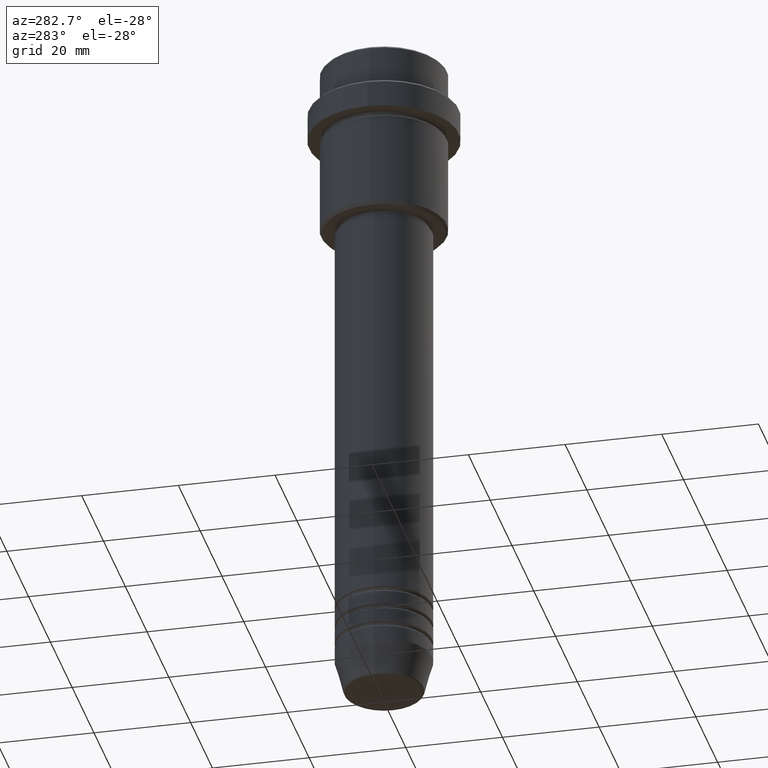
[diagram: clean part render]
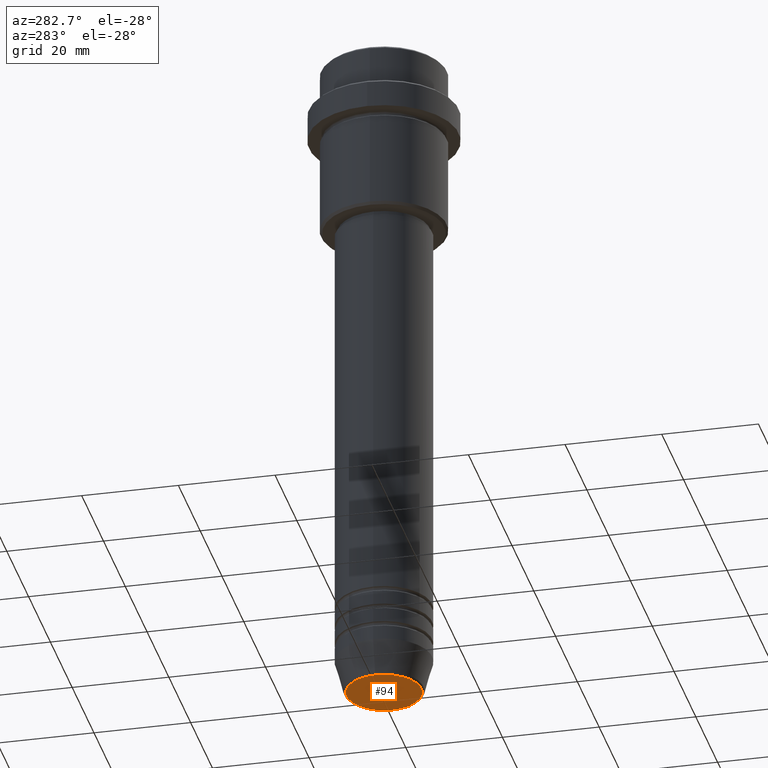
[diagram: same view with one face highlighted and labeled with its STEP entity id]
A machine part, auxiliary view. The second image highlights one B-rep face of the part: STEP entity #94.
In plain terms, the highlighted planar face has unit normal (0, -0, 1).
Its self-contained STEP definition (entity closure, byte-faithful):
#94 = ADVANCED_FACE ( 'NONE', ( #101 ), #850, .F. ) ;
#99 = CARTESIAN_POINT ( 'NONE',  ( -7.740692158992656502, 9.775343368540041107E-16, -141.0000000000000000 ) ) ;
#101 = FACE_OUTER_BOUND ( 'NONE', #197, .T. ) ;
#119 = VERTEX_POINT ( 'NONE', #441 ) ;
#136 = AXIS2_PLACEMENT_3D ( 'NONE', #1279, #1064, #653 ) ;
#164 = CIRCLE ( 'NONE', #963, 7.740692158992656502 ) ;
#182 = ORIENTED_EDGE ( 'NONE', *, *, #1232, .T. ) ;
#197 = EDGE_LOOP ( 'NONE', ( #182, #1012 ) ) ;
#246 = CARTESIAN_POINT ( 'NONE',  ( 0.000000000000000000, 0.000000000000000000, -141.0000000000000000 ) ) ;
#441 = CARTESIAN_POINT ( 'NONE',  ( 7.740692158992656502, 0.000000000000000000, -141.0000000000000000 ) ) ;
#491 = EDGE_CURVE ( 'NONE', #1084, #119, #576, .T. ) ;
#576 = CIRCLE ( 'NONE', #915, 7.740692158992656502 ) ;
#653 = DIRECTION ( 'NONE',  ( 1.000000000000000000, 0.000000000000000000, 0.000000000000000000 ) ) ;
#683 = DIRECTION ( 'NONE',  ( 0.000000000000000000, 0.000000000000000000, -1.000000000000000000 ) ) ;
#850 = PLANE ( 'NONE',  #136 ) ;
#915 = AXIS2_PLACEMENT_3D ( 'NONE', #1035, #1359, #1058 ) ;
#963 = AXIS2_PLACEMENT_3D ( 'NONE', #246, #683, #1116 ) ;
#1012 = ORIENTED_EDGE ( 'NONE', *, *, #491, .T. ) ;
#1035 = CARTESIAN_POINT ( 'NONE',  ( 0.000000000000000000, 0.000000000000000000, -141.0000000000000000 ) ) ;
#1058 = DIRECTION ( 'NONE',  ( 1.000000000000000000, 0.000000000000000000, 0.000000000000000000 ) ) ;
#1064 = DIRECTION ( 'NONE',  ( 0.000000000000000000, -0.000000000000000000, 1.000000000000000000 ) ) ;
#1084 = VERTEX_POINT ( 'NONE', #99 ) ;
#1116 = DIRECTION ( 'NONE',  ( 1.000000000000000000, 0.000000000000000000, 0.000000000000000000 ) ) ;
#1232 = EDGE_CURVE ( 'NONE', #119, #1084, #164, .T. ) ;
#1279 = CARTESIAN_POINT ( 'NONE',  ( 0.000000000000000000, 0.000000000000000000, -141.0000000000000000 ) ) ;
#1359 = DIRECTION ( 'NONE',  ( 0.000000000000000000, 0.000000000000000000, -1.000000000000000000 ) ) ;